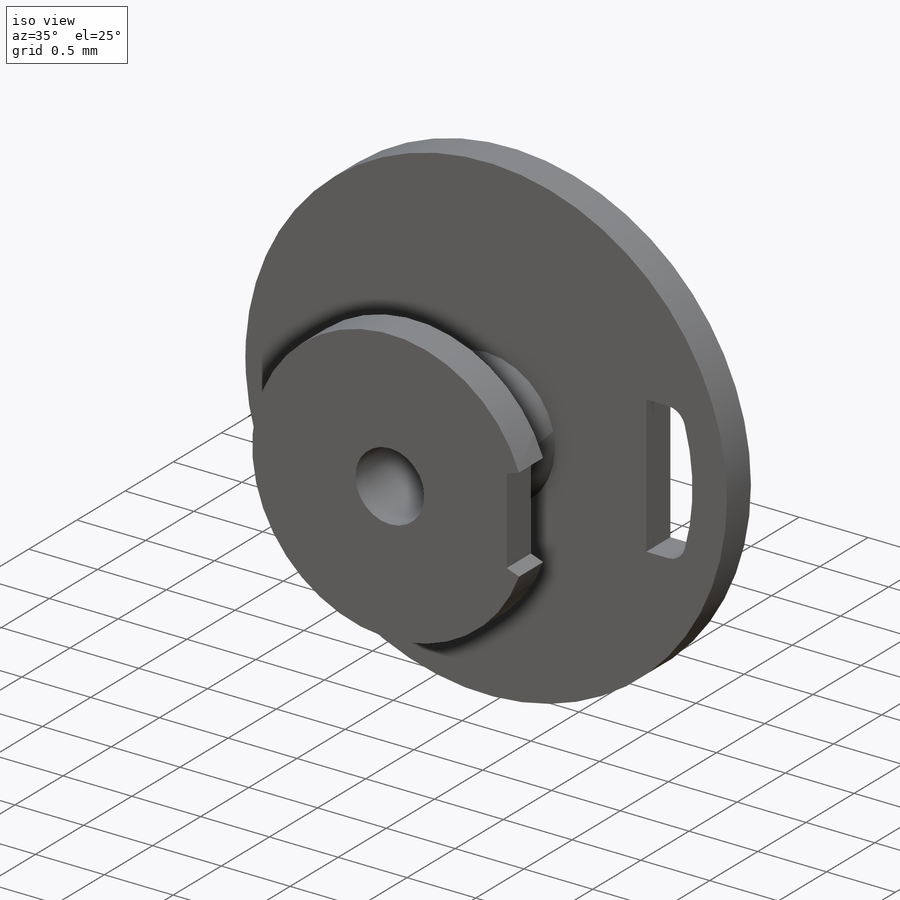
[diagram: iso view]
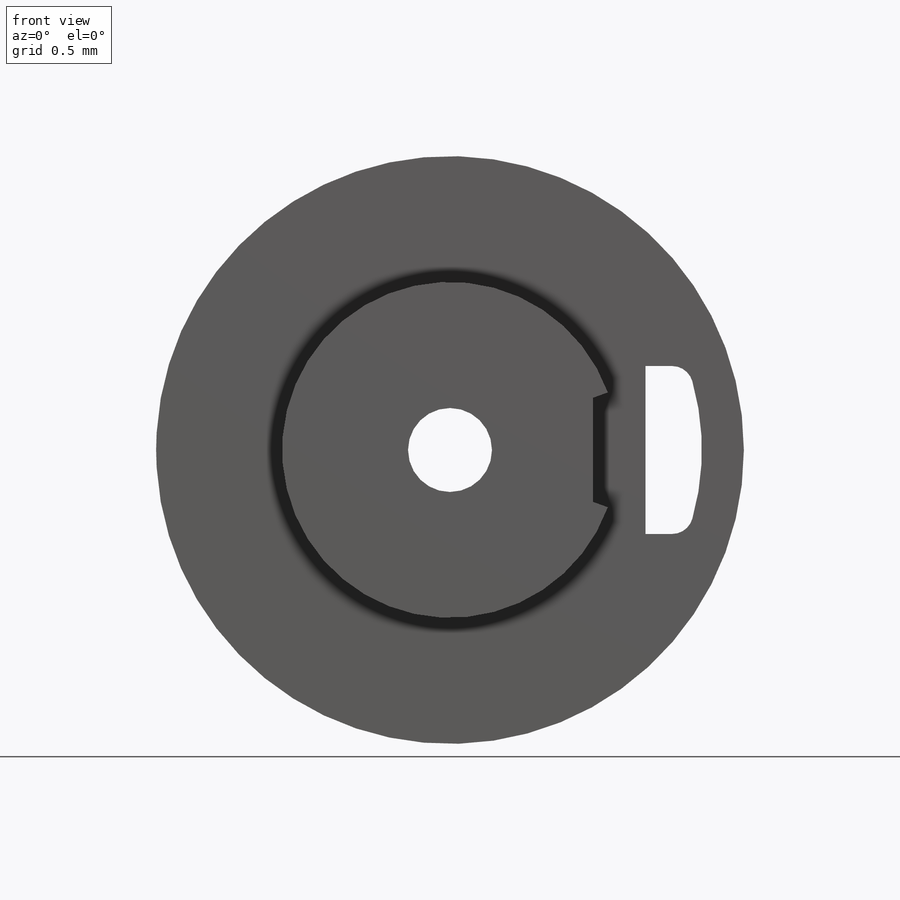
[diagram: front view]
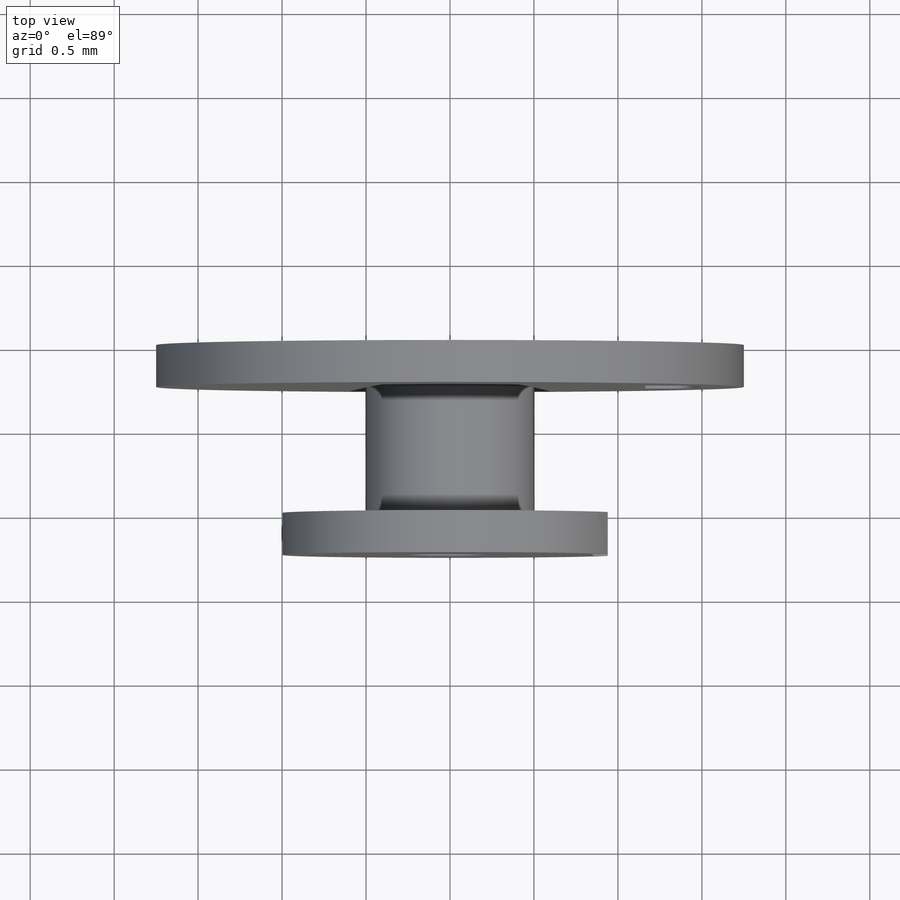
[diagram: top view]
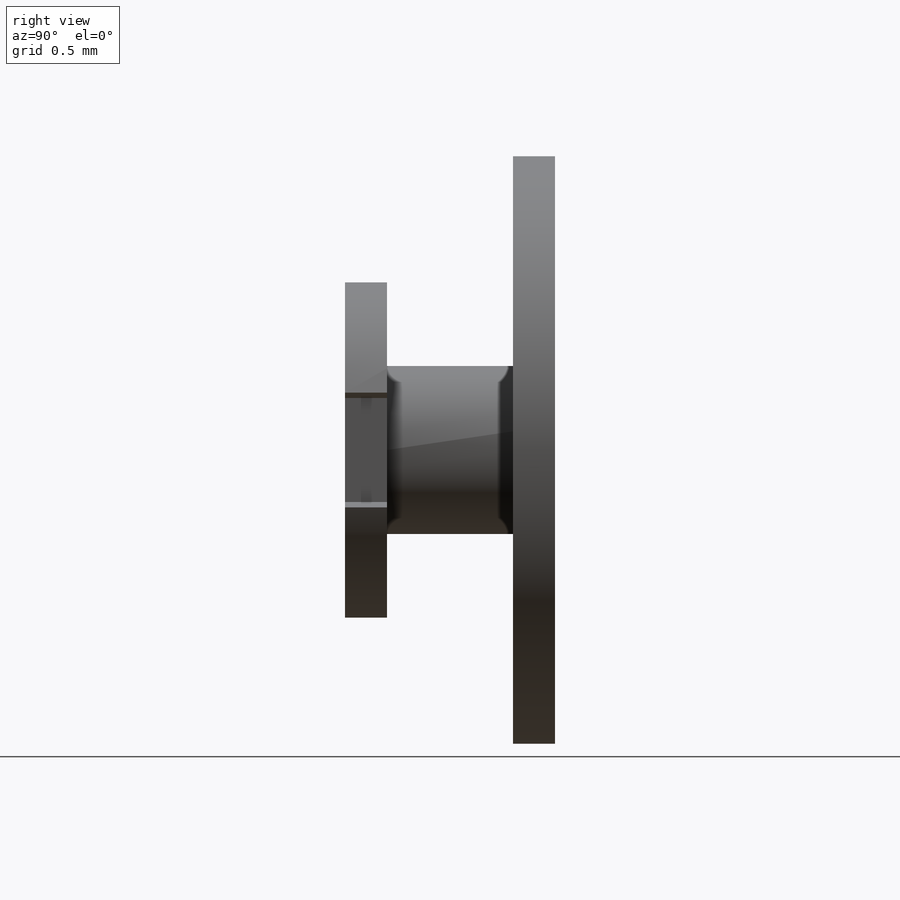
[diagram: right view]
SOLIDWORKS PART (.sldprt)
format: sldprt  version: not decoded by parser v0  size: 207,872 bytes
history: native  units: mm
features: sketch x4, plane x3, extrude x3, material x1, cut_extrude x1 (+8 scaffold rows collapsed)
feature tree (20):
  scaffold x8  (default folders/planes/origin — collapsed)
  material  "Material <sin especificar>"
  plane  "Alzado"
  plane  "Planta"
  plane  "Vista lateral"
  sketch  "Croquis1"  dims[D1=1.0mm D2=0.5mm]
  extrude  "Saliente-Extruir1"  Depth=0.75mm
  sketch  "Croquis2"  dims[c1.D1=2.0mm c1.D2=1.0mm c2.D2=20.0deg c2.D3=~0.149948mm c3.D3=20.0deg c3.D4=0.35mm c3.D5=~0.519191mm c4.D4=0.15mm c4.D5=~0.618749mm c5.D4=0.85mm c5.D5=0.85mm c5.D6=~0.703521mm c6.D6=20.0deg c6.D7=~1.087148mm c7.D7=20.0deg c7.D2=~0.703521mm c8.D2=20.0deg c8.D3=~0.703521mm c9.D3=20.0deg]
  extrude  "Saliente-Extruir2"  Depth=0.25mm
  sketch  "Croquis3"  dims[D1=3.5mm]
  extrude  "Saliente-Extruir3"  Depth=0.25mm
  sketch  "Croquis4"  dims[c1.D1=3.0mm c1.D2=3.0mm c1.D3=3.0mm c2.D1=1.5mm c2.D4=0.125mm c2.D3=2.75mm c2.D2=0.35mm c3.D3=0.25mm]
  cut_extrude  "Cortar-Extruir1"  [1 undecoded]
decode coverage: 7 of 8 modeling features carry decoded parameters
note: ~ marks probable driven/reference dimensions
note: 1 parameter value undecoded
note: suppression state not decoded; provenance and decode notes live in map.json
